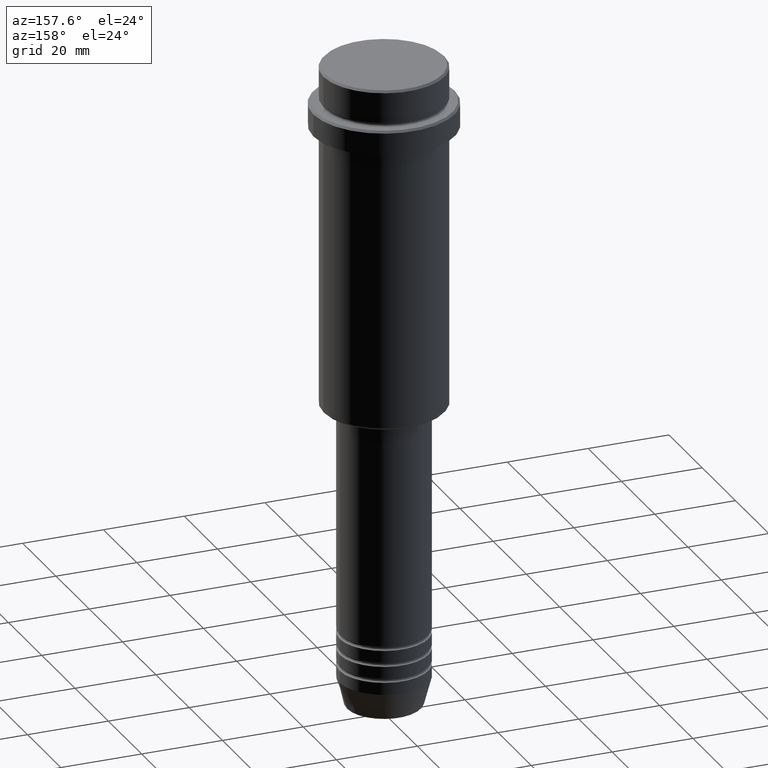
[diagram: clean part render]
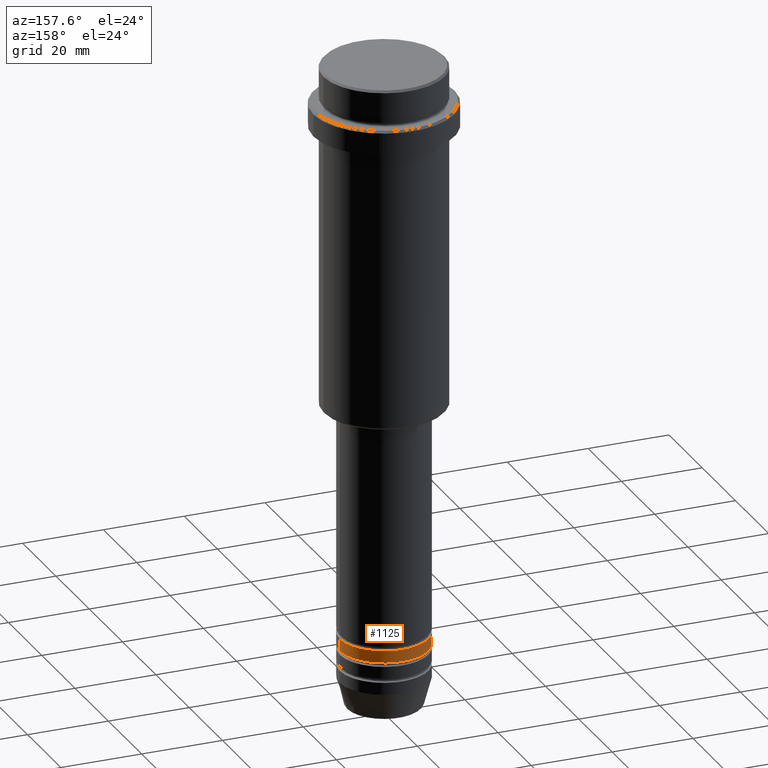
[diagram: same view with one face highlighted and labeled with its STEP entity id]
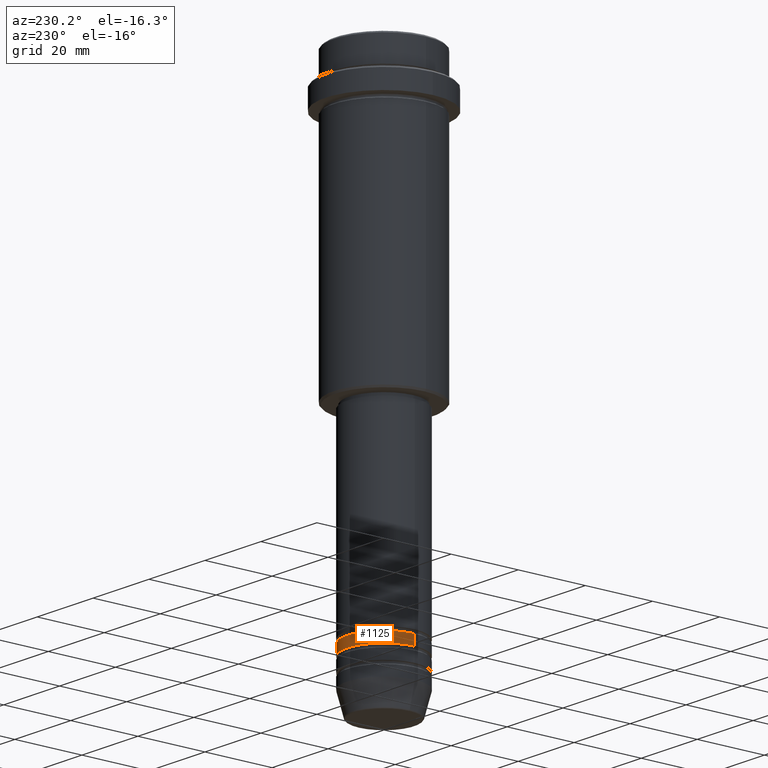
[diagram: same view with one face highlighted and labeled with its STEP entity id]
A machine part, auxiliary view. The second image highlights one B-rep face of the part: STEP entity #1125.
A second angle (auxiliary view) of the same face is appended — the face is thin or edge-on in the first view.
In plain terms, the highlighted cylindrical surface (partial cylindrical patch) has radius 11 mm, axis along (-0, -0, 1).
Its self-contained STEP definition (entity closure, byte-faithful):
#24 = DIRECTION ( 'NONE',  ( 1.000000000000000000, 0.000000000000000000, 0.000000000000000000 ) ) ;
#61 = CARTESIAN_POINT ( 'NONE',  ( 0.000000000000000000, 0.000000000000000000, 0.000000000000000000 ) ) ;
#83 = CYLINDRICAL_SURFACE ( 'NONE', #507, 11.00000000000000000 ) ;
#100 = CARTESIAN_POINT ( 'NONE',  ( 11.00000000000000000, 0.000000000000000000, -141.9999999999999147 ) ) ;
#105 = CARTESIAN_POINT ( 'NONE',  ( 0.000000000000000000, 0.000000000000000000, -144.9999999999999147 ) ) ;
#163 = CARTESIAN_POINT ( 'NONE',  ( -11.00000000000000000, 1.347111479062088405E-15, -141.9999999999999147 ) ) ;
#167 = CARTESIAN_POINT ( 'NONE',  ( 11.00000000000000000, 0.000000000000000000, 0.000000000000000000 ) ) ;
#218 = EDGE_CURVE ( 'NONE', #478, #269, #589, .T. ) ;
#221 = ORIENTED_EDGE ( 'NONE', *, *, #1302, .T. ) ;
#269 = VERTEX_POINT ( 'NONE', #163 ) ;
#379 = CARTESIAN_POINT ( 'NONE',  ( 11.00000000000000000, 0.000000000000000000, -144.9999999999999147 ) ) ;
#402 = AXIS2_PLACEMENT_3D ( 'NONE', #652, #977, #24 ) ;
#437 = DIRECTION ( 'NONE',  ( -0.000000000000000000, -0.000000000000000000, 1.000000000000000000 ) ) ;
#465 = DIRECTION ( 'NONE',  ( -0.000000000000000000, -0.000000000000000000, 1.000000000000000000 ) ) ;
#478 = VERTEX_POINT ( 'NONE', #1213 ) ;
#500 = DIRECTION ( 'NONE',  ( -0.000000000000000000, -0.000000000000000000, 1.000000000000000000 ) ) ;
#501 = VERTEX_POINT ( 'NONE', #379 ) ;
#507 = AXIS2_PLACEMENT_3D ( 'NONE', #61, #500, #856 ) ;
#531 = CIRCLE ( 'NONE', #402, 11.00000000000000000 ) ;
#547 = DIRECTION ( 'NONE',  ( 1.000000000000000000, 0.000000000000000000, 0.000000000000000000 ) ) ;
#588 = ORIENTED_EDGE ( 'NONE', *, *, #1388, .F. ) ;
#589 = LINE ( 'NONE', #699, #1351 ) ;
#599 = CIRCLE ( 'NONE', #1122, 11.00000000000000000 ) ;
#652 = CARTESIAN_POINT ( 'NONE',  ( 0.000000000000000000, 0.000000000000000000, -141.9999999999999147 ) ) ;
#699 = CARTESIAN_POINT ( 'NONE',  ( -11.00000000000000000, 1.347111479062088405E-15, 0.000000000000000000 ) ) ;
#837 = ORIENTED_EDGE ( 'NONE', *, *, #916, .F. ) ;
#856 = DIRECTION ( 'NONE',  ( 1.000000000000000000, 0.000000000000000000, 0.000000000000000000 ) ) ;
#916 = EDGE_CURVE ( 'NONE', #1285, #269, #531, .T. ) ;
#977 = DIRECTION ( 'NONE',  ( -0.000000000000000000, -0.000000000000000000, 1.000000000000000000 ) ) ;
#1122 = AXIS2_PLACEMENT_3D ( 'NONE', #105, #437, #547 ) ;
#1125 = ADVANCED_FACE ( 'NONE', ( #1152 ), #83, .T. ) ;
#1152 = FACE_OUTER_BOUND ( 'NONE', #1266, .T. ) ;
#1213 = CARTESIAN_POINT ( 'NONE',  ( -11.00000000000000000, 1.347111479062088405E-15, -144.9999999999999147 ) ) ;
#1248 = LINE ( 'NONE', #167, #1405 ) ;
#1266 = EDGE_LOOP ( 'NONE', ( #221, #1343, #837, #588 ) ) ;
#1285 = VERTEX_POINT ( 'NONE', #100 ) ;
#1302 = EDGE_CURVE ( 'NONE', #501, #478, #599, .T. ) ;
#1343 = ORIENTED_EDGE ( 'NONE', *, *, #218, .T. ) ;
#1346 = DIRECTION ( 'NONE',  ( -0.000000000000000000, -0.000000000000000000, 1.000000000000000000 ) ) ;
#1351 = VECTOR ( 'NONE', #465, 1000.000000000000000 ) ;
#1388 = EDGE_CURVE ( 'NONE', #501, #1285, #1248, .T. ) ;
#1405 = VECTOR ( 'NONE', #1346, 1000.000000000000000 ) ;